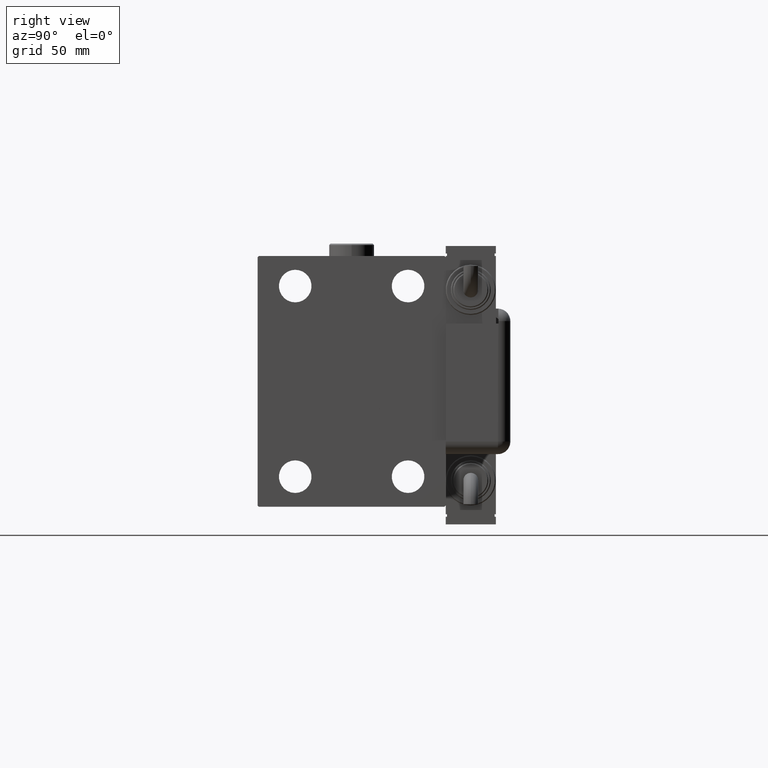
[diagram: clean part render]
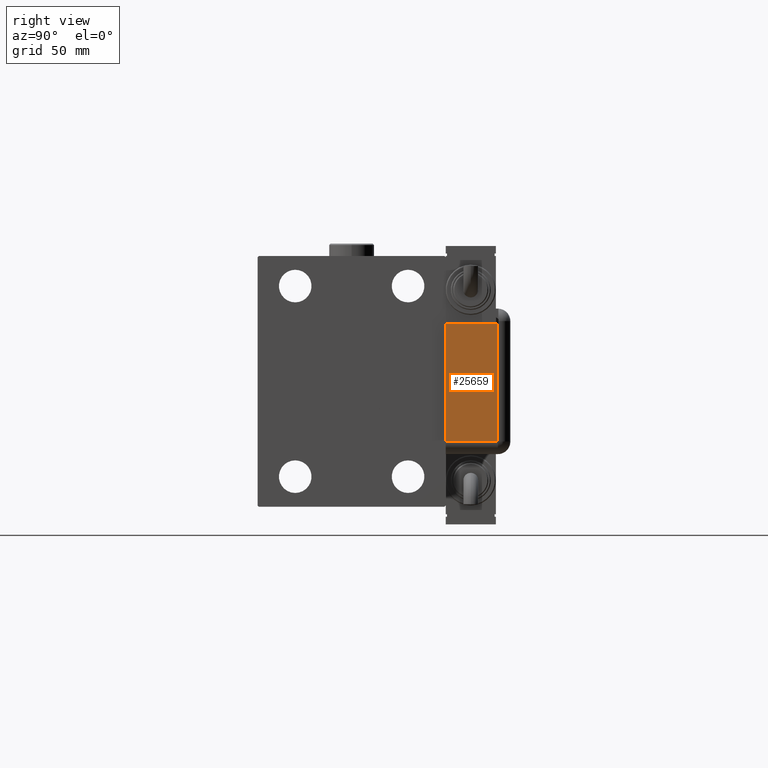
[diagram: same view with one face highlighted and labeled with its STEP entity id]
A machine part, right view. The second image highlights one B-rep face of the part: STEP entity #25659.
In plain terms, the highlighted planar face has unit normal (1, -0, -0).
Its self-contained STEP definition (entity closure, byte-faithful):
#2298 = VERTEX_POINT ( 'NONE', #46222 ) ;
#2365 = EDGE_LOOP ( 'NONE', ( #62393, #45990, #34116, #11590 ) ) ;
#2856 = FACE_OUTER_BOUND ( 'NONE', #2365, .T. ) ;
#6748 = VERTEX_POINT ( 'NONE', #63905 ) ;
#11590 = ORIENTED_EDGE ( 'NONE', *, *, #52053, .T. ) ;
#12854 = CARTESIAN_POINT ( 'NONE',  ( -23.99999999999999645, 20.79999999999998295, 0.000000000000000000 ) ) ;
#22563 = CARTESIAN_POINT ( 'NONE',  ( 0.000000000000000000, 0.000000000000000000, 0.000000000000000000 ) ) ;
#25659 = ADVANCED_FACE ( 'NONE', ( #2856 ), #51683, .T. ) ;
#29730 = LINE ( 'NONE', #34582, #42410 ) ;
#30908 = CARTESIAN_POINT ( 'NONE',  ( -23.99999999999999289, 1.007682896475360021E-13, 0.000000000000000000 ) ) ;
#31360 = EDGE_CURVE ( 'NONE', #6748, #62271, #41492, .T. ) ;
#31776 = VERTEX_POINT ( 'NONE', #30908 ) ;
#31934 = EDGE_CURVE ( 'NONE', #31776, #6748, #62597, .T. ) ;
#34116 = ORIENTED_EDGE ( 'NONE', *, *, #31934, .F. ) ;
#34582 = CARTESIAN_POINT ( 'NONE',  ( 23.99999999999999289, 20.79999999999998295, 0.000000000000000000 ) ) ;
#37117 = DIRECTION ( 'NONE',  ( -1.000000000000000000, 0.000000000000000000, -0.000000000000000000 ) ) ;
#39443 = DIRECTION ( 'NONE',  ( 1.000000000000000000, -0.000000000000000000, -0.000000000000000000 ) ) ;
#41175 = DIRECTION ( 'NONE',  ( 0.000000000000000000, 1.000000000000000000, 0.000000000000000000 ) ) ;
#41492 = LINE ( 'NONE', #46678, #56314 ) ;
#42276 = DIRECTION ( 'NONE',  ( 0.000000000000000000, 0.000000000000000000, -1.000000000000000000 ) ) ;
#42410 = VECTOR ( 'NONE', #39443, 1000.000000000000000 ) ;
#45990 = ORIENTED_EDGE ( 'NONE', *, *, #31360, .F. ) ;
#46222 = CARTESIAN_POINT ( 'NONE',  ( -23.99999999999999645, 20.79999999999998295, 0.000000000000000000 ) ) ;
#46678 = CARTESIAN_POINT ( 'NONE',  ( 23.00000000000000000, 0.000000000000000000, 0.000000000000000000 ) ) ;
#49850 = EDGE_CURVE ( 'NONE', #2298, #62271, #29730, .T. ) ;
#51665 = LINE ( 'NONE', #12854, #53915 ) ;
#51683 = PLANE ( 'NONE',  #62226 ) ;
#52053 = EDGE_CURVE ( 'NONE', #31776, #2298, #51665, .T. ) ;
#53199 = CARTESIAN_POINT ( 'NONE',  ( 28.99999999999999645, -9.421223957302265857E-15, 0.000000000000000000 ) ) ;
#53915 = VECTOR ( 'NONE', #62019, 1000.000000000000000 ) ;
#54263 = VECTOR ( 'NONE', #63847, 1000.000000000000000 ) ;
#56314 = VECTOR ( 'NONE', #41175, 1000.000000000000000 ) ;
#57068 = CARTESIAN_POINT ( 'NONE',  ( 23.00000000000000000, 20.79999999999998295, 1.734723475976807094E-15 ) ) ;
#62019 = DIRECTION ( 'NONE',  ( -0.000000000000000000, 1.000000000000000000, -0.000000000000000000 ) ) ;
#62226 = AXIS2_PLACEMENT_3D ( 'NONE', #22563, #42276, #37117 ) ;
#62271 = VERTEX_POINT ( 'NONE', #57068 ) ;
#62393 = ORIENTED_EDGE ( 'NONE', *, *, #49850, .T. ) ;
#62597 = LINE ( 'NONE', #53199, #54263 ) ;
#63847 = DIRECTION ( 'NONE',  ( 1.000000000000000000, -2.079047426506382950E-15, -0.000000000000000000 ) ) ;
#63905 = CARTESIAN_POINT ( 'NONE',  ( 23.00000000000000000, 0.000000000000000000, 0.000000000000000000 ) ) ;